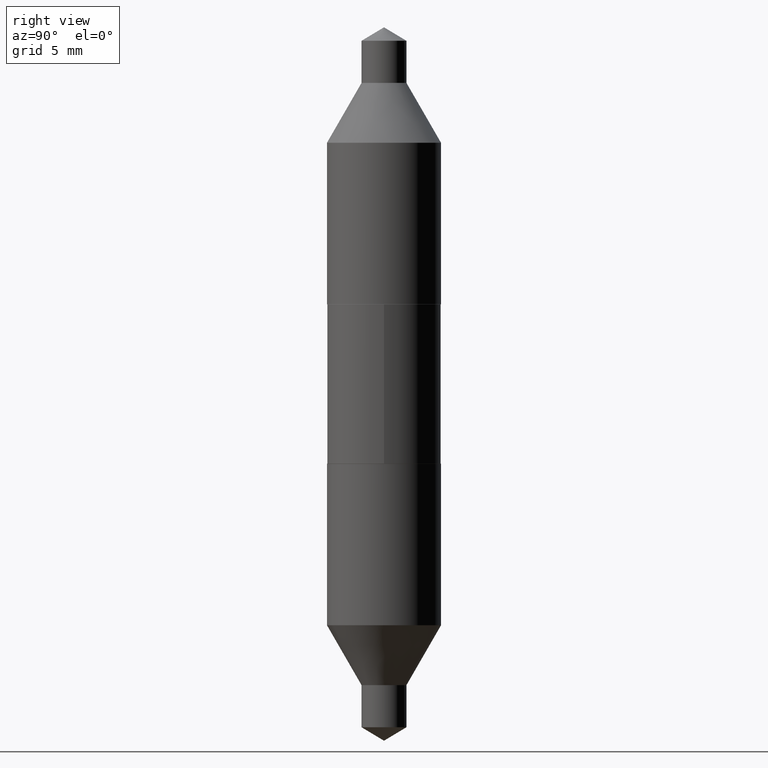
[diagram: clean part render]
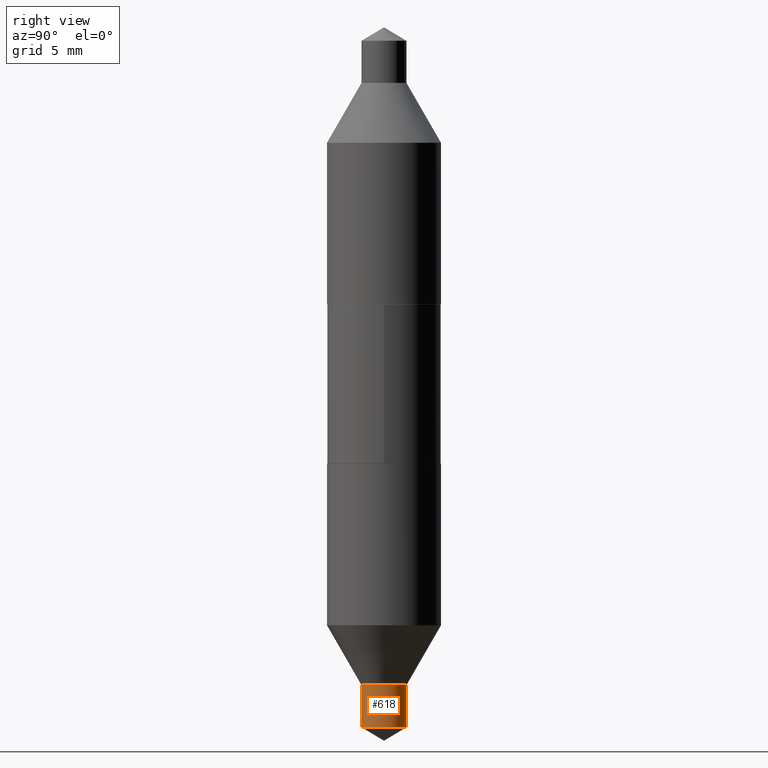
[diagram: same view with one face highlighted and labeled with its STEP entity id]
A machine part, right view. The second image highlights one B-rep face of the part: STEP entity #618.
In plain terms, the highlighted cylindrical surface (edge-blend (fillet) strip) has radius 1.5748 mm, axis along (-0, 0, 1).
Its self-contained STEP definition (entity closure, byte-faithful):
#15 = DIRECTION ( 'NONE',  ( -6.982962677686265922E-15, -1.000000000000000000, 4.406206441393972551E-15 ) ) ;
#44 = CYLINDRICAL_SURFACE ( 'NONE', #146, 0.06200000000000001343 ) ;
#55 = VERTEX_POINT ( 'NONE', #525 ) ;
#58 = CARTESIAN_POINT ( 'NONE',  ( 2.025546210202964853E-29, -2.914424278938668661E-15, -0.8315000000000000169 ) ) ;
#71 = EDGE_CURVE ( 'NONE', #625, #55, #167, .T. ) ;
#101 = CARTESIAN_POINT ( 'NONE',  ( 4.405364961712852849E-16, 0.06199999999999709216, -0.8315000000000002389 ) ) ;
#111 = DIRECTION ( 'NONE',  ( -2.432613365236688124E-29, 3.509891061967582916E-15, 1.000000000000000000 ) ) ;
#112 = EDGE_CURVE ( 'NONE', #55, #591, #682, .T. ) ;
#146 = AXIS2_PLACEMENT_3D ( 'NONE', #198, #251, #420 ) ;
#158 = VECTOR ( 'NONE', #111, 39.37007874015748143 ) ;
#167 = LINE ( 'NONE', #336, #158 ) ;
#176 = CIRCLE ( 'NONE', #538, 0.06200000000000001343 ) ;
#177 = LINE ( 'NONE', #606, #348 ) ;
#198 = CARTESIAN_POINT ( 'NONE',  ( 5.380031373607299336E-30, -7.681258945454920400E-16, -0.2199999999999999734 ) ) ;
#251 = DIRECTION ( 'NONE',  ( -2.432613365236688124E-29, 3.509891061967582916E-15, 1.000000000000000000 ) ) ;
#263 = ORIENTED_EDGE ( 'NONE', *, *, #400, .T. ) ;
#332 = DIRECTION ( 'NONE',  ( -2.432613365236688124E-29, 3.509891061967582916E-15, 1.000000000000000000 ) ) ;
#336 = CARTESIAN_POINT ( 'NONE',  ( -4.329436860165431895E-16, -0.06200000000000078365, -0.2199999999999997791 ) ) ;
#342 = ORIENTED_EDGE ( 'NONE', *, *, #71, .F. ) ;
#348 = VECTOR ( 'NONE', #332, 39.37007874015748143 ) ;
#357 = FACE_OUTER_BOUND ( 'NONE', #568, .T. ) ;
#389 = ORIENTED_EDGE ( 'NONE', *, *, #112, .F. ) ;
#400 = EDGE_CURVE ( 'NONE', #437, #591, #177, .T. ) ;
#420 = DIRECTION ( 'NONE',  ( -6.982962677686265922E-15, -1.000000000000000000, 3.304654831045479019E-15 ) ) ;
#426 = EDGE_CURVE ( 'NONE', #625, #437, #176, .T. ) ;
#437 = VERTEX_POINT ( 'NONE', #573 ) ;
#441 = DIRECTION ( 'NONE',  ( -2.432613365236688124E-29, 3.509891061967582916E-15, 1.000000000000000000 ) ) ;
#517 = DIRECTION ( 'NONE',  ( -6.982962677686265922E-15, -1.000000000000000000, 4.406206441393971762E-15 ) ) ;
#525 = CARTESIAN_POINT ( 'NONE',  ( -4.329436860165282505E-16, -0.06200000000000292083, -0.8314999999999996838 ) ) ;
#538 = AXIS2_PLACEMENT_3D ( 'NONE', #557, #626, #517 ) ;
#557 = CARTESIAN_POINT ( 'NONE',  ( 2.308329344272365928E-29, -3.322437327345479202E-15, -0.9477466416202916522 ) ) ;
#567 = AXIS2_PLACEMENT_3D ( 'NONE', #58, #441, #15 ) ;
#568 = EDGE_LOOP ( 'NONE', ( #677, #263, #389, #342 ) ) ;
#573 = CARTESIAN_POINT ( 'NONE',  ( 4.405364961712853835E-16, 0.06199999999999671052, -0.9477466416202918742 ) ) ;
#591 = VERTEX_POINT ( 'NONE', #101 ) ;
#606 = CARTESIAN_POINT ( 'NONE',  ( 4.405364961712675355E-16, 0.06199999999999924322, -0.2200000000000001676 ) ) ;
#618 = ADVANCED_FACE ( 'NONE', ( #357 ), #44, .T. ) ;
#625 = VERTEX_POINT ( 'NONE', #686 ) ;
#626 = DIRECTION ( 'NONE',  ( -2.432613365236688124E-29, 3.509891061967582916E-15, 1.000000000000000000 ) ) ;
#677 = ORIENTED_EDGE ( 'NONE', *, *, #426, .T. ) ;
#682 = CIRCLE ( 'NONE', #567, 0.06200000000000000649 ) ;
#686 = CARTESIAN_POINT ( 'NONE',  ( -4.329436860165256867E-16, -0.06200000000000335798, -0.9477466416202913191 ) ) ;